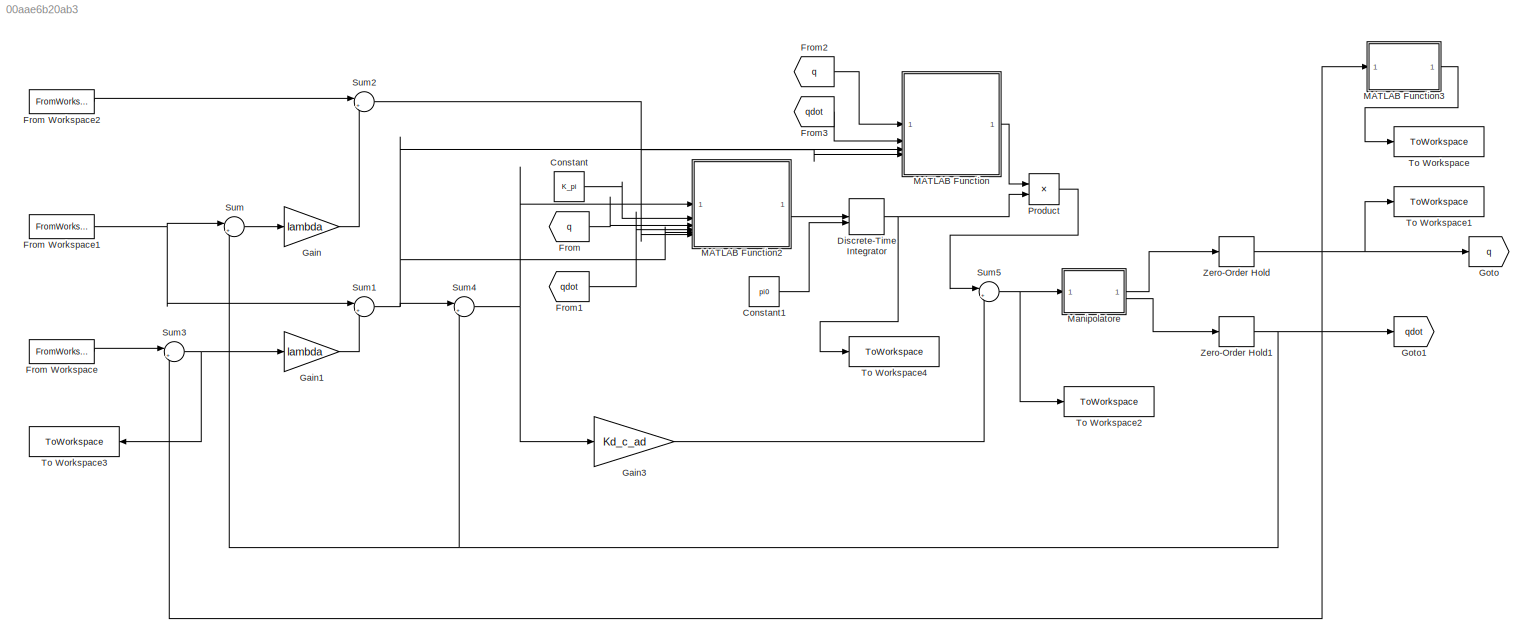
MODEL slx_00aae6b20ab3
KIND model
CONFIG AbsTol = auto
CONFIG EnableMultiTasking = off
CONFIG FixedStep = auto
CONFIG MaxStep = auto
CONFIG MinStep = auto
CONFIG RelTol = 1e-3
CONFIG SampleTimeConstraint = Unconstrained
CONFIG SolverName = VariableStepAuto
CONFIG StartTime = 0.0
CONFIG StopTime = 36
BLOCK [Constant] Constant
  Value = K_pi
BLOCK [Constant] Constant1
  Value = pi0
BLOCK [DiscreteIntegrator] Discrete-Time Integrator
  ICPrevOutput = DiscIntNeverNeededParam
  ICPrevScaledInput = DiscIntNeverNeededParam
  InitialConditionSetting = Auto
  InitialConditionSource = external
  SampleTime = Tc
BLOCK [From] From
  GotoTag = q
BLOCK [FromWorkspace] From Workspace
  SampleTime = Tc
  VariableName = qd
BLOCK [FromWorkspace] From Workspace1
  SampleTime = Tc
  VariableName = qddot
BLOCK [FromWorkspace] From Workspace2
  SampleTime = Tc
  VariableName = qddotdot
BLOCK [From] From1
  GotoTag = qdot
BLOCK [From] From2
  GotoTag = q
BLOCK [From] From3
  GotoTag = qdot
BLOCK [Gain] Gain
  Gain = lambda
  Multiplication = Matrix(K*u) (u vector)
BLOCK [Gain] Gain1
  Gain = lambda
  Multiplication = Matrix(K*u) (u vector)
BLOCK [Gain] Gain3
  Gain = Kd_c_ad
  Multiplication = Matrix(K*u) (u vector)
BLOCK [Goto] Goto
  GotoTag = q
BLOCK [Goto] Goto1
  GotoTag = qdot
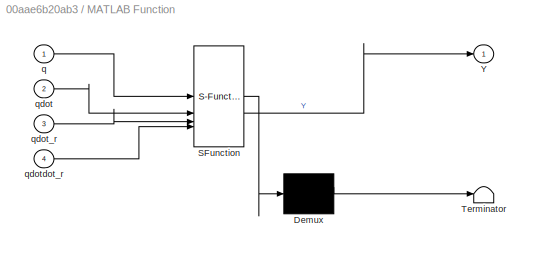
BLOCK [SubSystem] MATLAB Function
  ErrorFcn = Stateflow.Translate.translate
  PermitHierarchicalResolution = ExplicitOnly
  SFBlockType = MATLAB Function
  TreatAsAtomicUnit = on
BLOCK [Demux] MATLAB Function/ Demux 
  Outputs = 1
BLOCK [S-Function] MATLAB Function/ SFunction 
  EnableBusSupport = on
  FunctionName = sf_sfun
  PortCounts = [4 2]
  SFcnIsStateOwnerBlock = off
  SFunctionDeploymentMode = off
  Tag = Stateflow S-Function 5
BLOCK [Terminator] MATLAB Function/ Terminator 
BLOCK [Outport] MATLAB Function/Y
BLOCK [Inport] MATLAB Function/q
BLOCK [Inport] MATLAB Function/qdot
  Port = 2
BLOCK [Inport] MATLAB Function/qdot_r
  Port = 3
BLOCK [Inport] MATLAB Function/qdotdot_r
  Port = 4
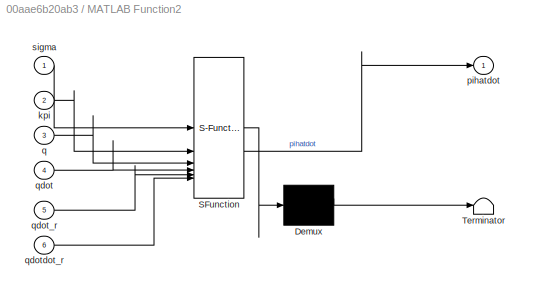
BLOCK [SubSystem] MATLAB Function2
  ErrorFcn = Stateflow.Translate.translate
  PermitHierarchicalResolution = ExplicitOnly
  SFBlockType = MATLAB Function
  TreatAsAtomicUnit = on
BLOCK [Demux] MATLAB Function2/ Demux 
  Outputs = 1
BLOCK [S-Function] MATLAB Function2/ SFunction 
  EnableBusSupport = on
  FunctionName = sf_sfun
  PortCounts = [6 2]
  SFcnIsStateOwnerBlock = off
  SFunctionDeploymentMode = off
  Tag = Stateflow S-Function 7
BLOCK [Terminator] MATLAB Function2/ Terminator 
BLOCK [Inport] MATLAB Function2/kpi
  Port = 2
BLOCK [Outport] MATLAB Function2/pihatdot
BLOCK [Inport] MATLAB Function2/q
  Port = 3
BLOCK [Inport] MATLAB Function2/qdot
  Port = 4
BLOCK [Inport] MATLAB Function2/qdot_r
  Port = 5
BLOCK [Inport] MATLAB Function2/qdotdot_r
  Port = 6
BLOCK [Inport] MATLAB Function2/sigma
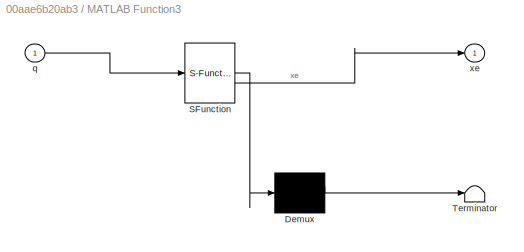
BLOCK [SubSystem] MATLAB Function3
  ErrorFcn = Stateflow.Translate.translate
  PermitHierarchicalResolution = ExplicitOnly
  SFBlockType = MATLAB Function
  TreatAsAtomicUnit = on
BLOCK [Demux] MATLAB Function3/ Demux 
  Outputs = 1
BLOCK [S-Function] MATLAB Function3/ SFunction 
  EnableBusSupport = on
  FunctionName = sf_sfun
  PortCounts = [1 2]
  SFcnIsStateOwnerBlock = off
  SFunctionDeploymentMode = off
  Tag = Stateflow S-Function 9
BLOCK [Terminator] MATLAB Function3/ Terminator 
BLOCK [Inport] MATLAB Function3/q
BLOCK [Outport] MATLAB Function3/xe
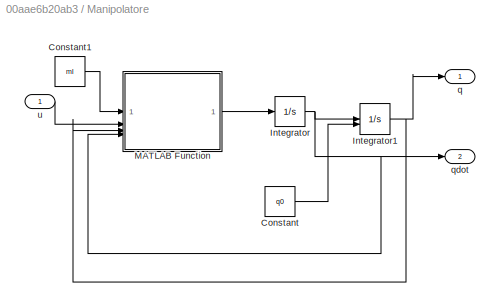
BLOCK [SubSystem] Manipolatore
BLOCK [Constant] Manipolatore/Constant
  Value = q0
BLOCK [Constant] Manipolatore/Constant1
  Value = ml
BLOCK [Integrator] Manipolatore/Integrator
  InitialCondition = [0 0 0 0]'
BLOCK [Integrator] Manipolatore/Integrator1
  InitialConditionSource = external
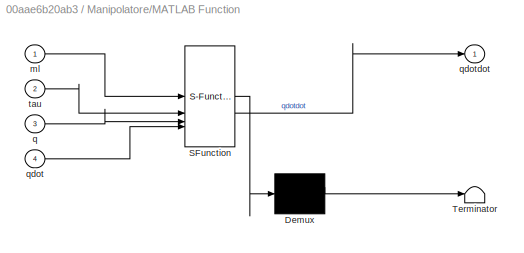
BLOCK [SubSystem] Manipolatore/MATLAB Function
  ErrorFcn = Stateflow.Translate.translate
  PermitHierarchicalResolution = ExplicitOnly
  SFBlockType = MATLAB Function
  TreatAsAtomicUnit = on
BLOCK [Demux] Manipolatore/MATLAB Function/ Demux 
  Outputs = 1
BLOCK [S-Function] Manipolatore/MATLAB Function/ SFunction 
  EnableBusSupport = on
  FunctionName = sf_sfun
  PortCounts = [4 2]
  SFcnIsStateOwnerBlock = off
  SFunctionDeploymentMode = off
  Tag = Stateflow S-Function 8
BLOCK [Terminator] Manipolatore/MATLAB Function/ Terminator 
BLOCK [Inport] Manipolatore/MATLAB Function/ml
BLOCK [Inport] Manipolatore/MATLAB Function/q
  Port = 3
BLOCK [Inport] Manipolatore/MATLAB Function/qdot
  Port = 4
BLOCK [Outport] Manipolatore/MATLAB Function/qdotdot
BLOCK [Inport] Manipolatore/MATLAB Function/tau
  Port = 2
BLOCK [Outport] Manipolatore/q
BLOCK [Outport] Manipolatore/qdot
  Port = 2
BLOCK [Inport] Manipolatore/u
BLOCK [Product] Product
  Multiplication = Matrix(*)
BLOCK [Sum] Sum
  Inputs = |+-
BLOCK [Sum] Sum1
  Inputs = |++
BLOCK [Sum] Sum2
  Inputs = |++
BLOCK [Sum] Sum3
  Inputs = |+-
BLOCK [Sum] Sum4
  Inputs = |+-
BLOCK [Sum] Sum5
  Inputs = |++
BLOCK [ToWorkspace] To Workspace
  FixptAsFi = on
  MaxDataPoints = inf
  SampleTime = -1
  SaveFormat = Structure With Time
  VariableName = xecontad
BLOCK [ToWorkspace] To Workspace1
  FixptAsFi = on
  MaxDataPoints = inf
  SampleTime = -1
  SaveFormat = Structure With Time
  VariableName = qcontad
BLOCK [ToWorkspace] To Workspace2
  FixptAsFi = on
  MaxDataPoints = inf
  SampleTime = -1
  SaveFormat = Structure With Time
  VariableName = controlad
BLOCK [ToWorkspace] To Workspace3
  FixptAsFi = on
  MaxDataPoints = inf
  NameLocation = top
  SampleTime = -1
  SaveFormat = Structure With Time
  VariableName = qerrorad
BLOCK [ToWorkspace] To Workspace4
  FixptAsFi = on
  MaxDataPoints = inf
  SampleTime = -1
  SaveFormat = Structure With Time
  VariableName = picappuccio
BLOCK [ZeroOrderHold] Zero-Order Hold
  SampleTime = Tc
BLOCK [ZeroOrderHold] Zero-Order Hold1
  SampleTime = Tc
LINE Constant1:1 -> Discrete-Time Integrator:2
LINE Constant:1 -> MATLAB Function2:2
NET Discrete-Time Integrator:1 -> Product:2, To Workspace4:1
NET From Workspace1:1 -> Sum1:1, Sum:1
LINE From Workspace2:1 -> Sum2:1
LINE From Workspace:1 -> Sum3:1
LINE From1:1 -> MATLAB Function2:4
LINE From2:1 -> MATLAB Function:1
LINE From3:1 -> MATLAB Function:2
LINE From:1 -> MATLAB Function2:3
LINE Gain1:1 -> Sum1:2
LINE Gain3:1 -> Sum5:2
LINE Gain:1 -> Sum2:2
LINE MATLAB Function2:1 -> Discrete-Time Integrator:1
LINE MATLAB Function3:1 -> To Workspace:1
LINE MATLAB Function:1 -> Product:1
LINE Manipolatore/Constant1:1 -> Manipolatore/MATLAB Function:1
LINE Manipolatore/Constant:1 -> Manipolatore/Integrator1:2
NET Manipolatore/Integrator1:1 -> Manipolatore/MATLAB Function:3, Manipolatore/q:1
NET Manipolatore/Integrator:1 -> Manipolatore/Integrator1:1, Manipolatore/MATLAB Function:4, Manipolatore/qdot:1
LINE Manipolatore/MATLAB Function:1 -> Manipolatore/Integrator:1
LINE Manipolatore/u:1 -> Manipolatore/MATLAB Function:2
LINE Manipolatore:1 -> Zero-Order Hold:1
LINE Manipolatore:2 -> Zero-Order Hold1:1
LINE Product:1 -> Sum5:1
NET Sum1:1 -> MATLAB Function2:5, MATLAB Function:3, Sum4:1
NET Sum2:1 -> MATLAB Function2:6, MATLAB Function:4
NET Sum3:1 -> Gain1:1, To Workspace3:1
NET Sum4:1 -> Gain3:1, MATLAB Function2:1
NET Sum5:1 -> Manipolatore:1, To Workspace2:1
LINE Sum:1 -> Gain:1
NET Zero-Order Hold1:1 -> Goto1:1, Sum4:2, Sum:2
NET Zero-Order Hold:1 -> Goto:1, MATLAB Function3:1, Sum3:2, To Workspace1:1
note: NET lines group one-source signal fan-out (src -> all destinations, sorted); 1:1 wires keep LINE
CHART MATLAB Function states=1 transitions=1
  STATE_LABEL 'eML_blk_kernel()'
  STATE_LABEL 'SCRIPT:\nfunction Y = regressor(q,qdot,qdot_r,qdotdot_r)\na1=0.5;\na2=0.5;\nl1=0.25;\nl2=0.25;\nml1=20;\nml2=20;\nml3=10;\nIl1=4;\nIl2=4;\nIl4=1;\nkr1=1;\nkr2=1;\nkr3=50;\nkr4=20;\nIm1=0.01;\nIm2=0.01;\nIm3=0.005;\nIm4=0.001;\n\nFm1=0.00005;\nFm2=0.00005;\nFm3=0.01;\nFm4=0.005;\n\nY=zeros(4,15);\n\nf=qdotdot_r(1)*(a1^2+l2^2+2*a1*l2*cos(q(2)))+qdotdot_r(2)*(l2^2+a1*l2*cos(q(2)))-a1*l2*sin(q(2))*qdot(2)*qdot_r(1)-a1*l2*sin(q(2...<+1271ch>'
CHART MATLAB Function2 states=1 transitions=1
  STATE_LABEL 'eML_blk_kernel()'
  STATE_LABEL 'SCRIPT:\nfunction pihatdot = adatt(sigma,kpi,q,qdot,qdot_r,qdotdot_r)\n\na1=0.5;\na2=0.5;\nl1=0.25;\nl2=0.25;\nml1=20;\nml2=20;\nml3=10;\nIl1=4;\nIl2=4;\nIl4=1;\nkr1=1;\nkr2=1;\nkr3=50;\nkr4=20;\nIm1=0.01;\nIm2=0.01;\nIm3=0.005;\nIm4=0.001;\n\nFm1=0.00005;\nFm2=0.00005;\nFm3=0.01;\nFm4=0.005;\n\nY=zeros(4,15);\n\nf=qdotdot_r(1)*(a1^2+l2^2+2*a1*l2*cos(q(2)))+qdotdot_r(2)*(l2^2+a1*l2*cos(q(2)))-a1*l2*sin(q(2))*qdot(2)*qdot_r(1)...<+2591ch>'
CHART Manipolatore/MATLAB Function states=1 transitions=1
  STATE_LABEL 'eML_blk_kernel()'
  STATE_LABEL 'SCRIPT:\nfunction qdotdot= Dinamica_diretta(ml,tau,q,qdot)\na1=0.5;\na2=0.5;\nl1=0.25;\nl2=0.25;\nml1=20;\nml2=20;\nml3=10;\nIl1=4;\nIl2=4;\nIl4=1;\nkr1=1;\nkr2=1;\nkr3=50;\nkr4=20;\nIm1=0.01;\nIm2=0.01;\nIm3=0.005;\nIm4=0.001;\n\nFm1=0.00005;\nFm2=0.00005;\nFm3=0.01;\nFm4=0.005;\n\nmhe=4; %carico in punta;\n%% calcolo jacobiani\nJpl1=[-l1*sin(q(1)) 0 0 0;\n    l1*cos(q(1)) 0 0 0;\n    0 0 0 0];\n\nJpl2=[-a1*sin(q(1))-l2*sin(q(1...<+1863ch>'
CHART MATLAB Function3 states=1 transitions=1
  STATE_LABEL 'eML_blk_kernel()'
  STATE_LABEL 'SCRIPT:\nfunction xe = dirkin(q)\na1=0.5;\na2=a1;\nd0=1;\n\n\nxe=[a1*cos(q(1))+a2*cos(q(1)+q(2));...\n    a1*sin(q(1))+a2*sin(q(1)+q(2));...\n    d0+q(3);...\n    q(1)+q(2)+q(4)];\nend\n'
CHART  states=0 transitions=0
CHART  states=0 transitions=0
CHART  states=0 transitions=0
CHART  states=0 transitions=0
